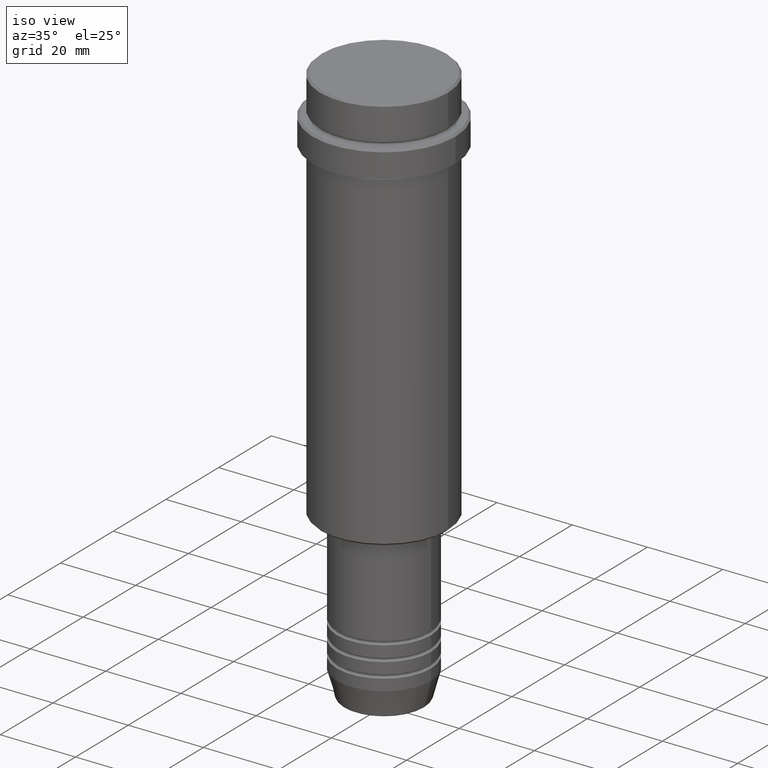
[diagram: clean part render]
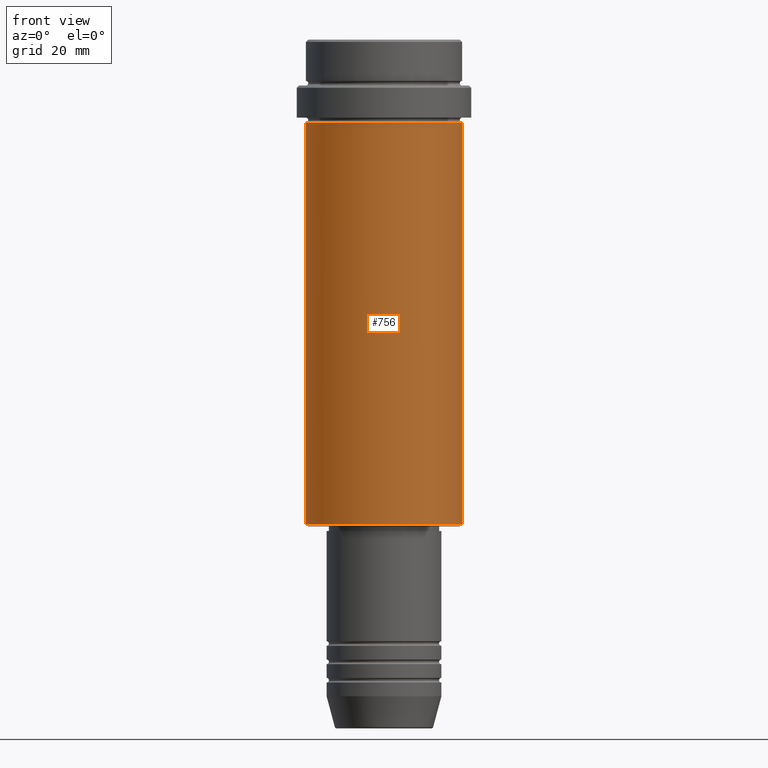
[diagram: tour spotlight — one face highlighted and labeled with its STEP entity id]
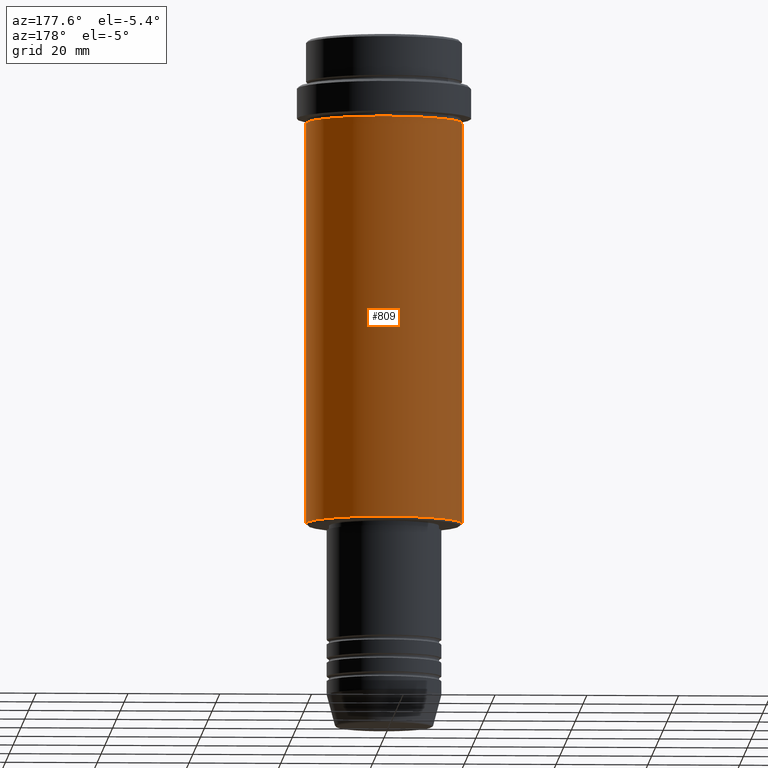
[diagram: tour spotlight — one face highlighted and labeled with its STEP entity id]
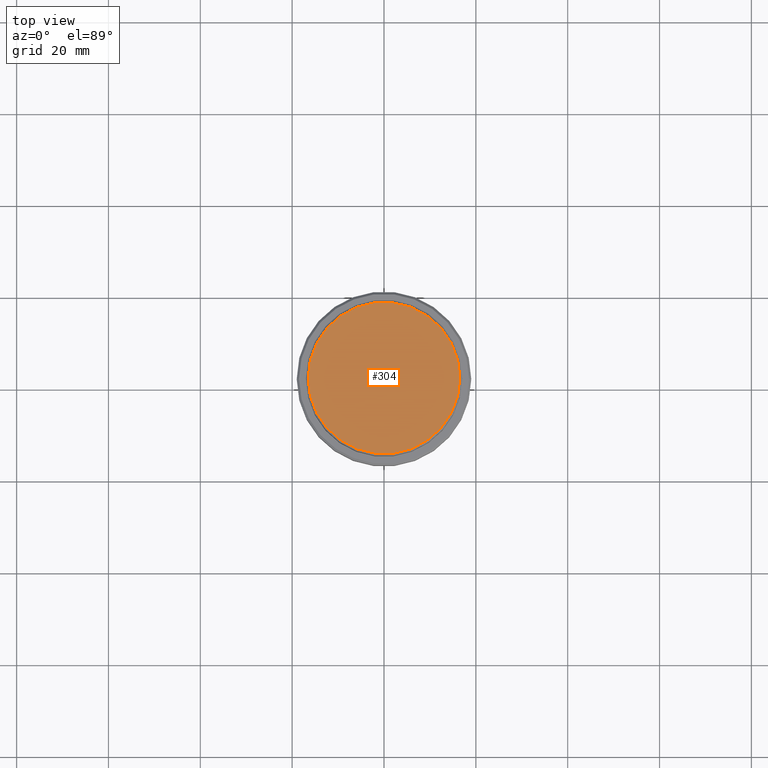
[diagram: tour spotlight — one face highlighted and labeled with its STEP entity id]
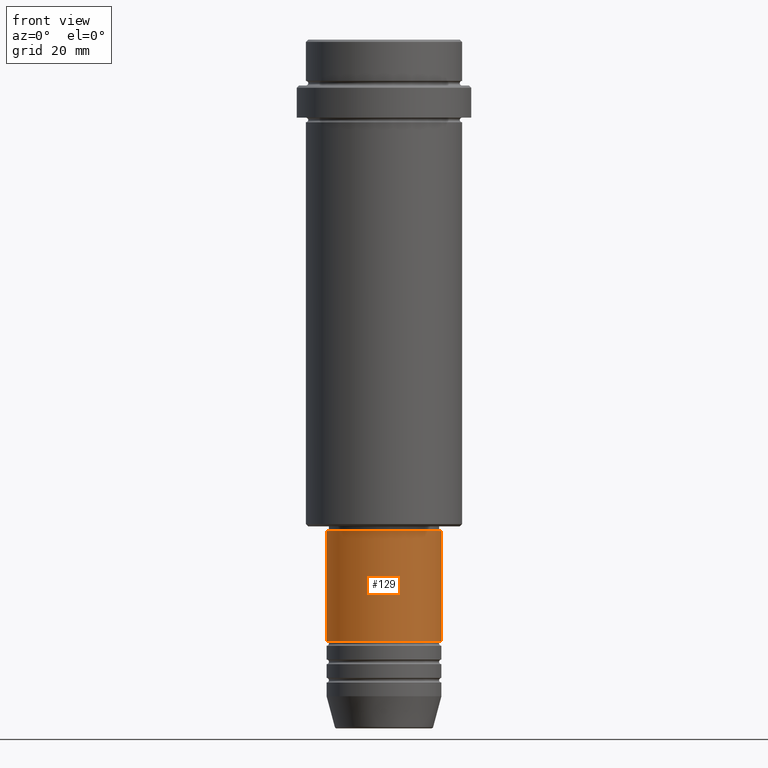
[diagram: tour spotlight — one face highlighted and labeled with its STEP entity id]
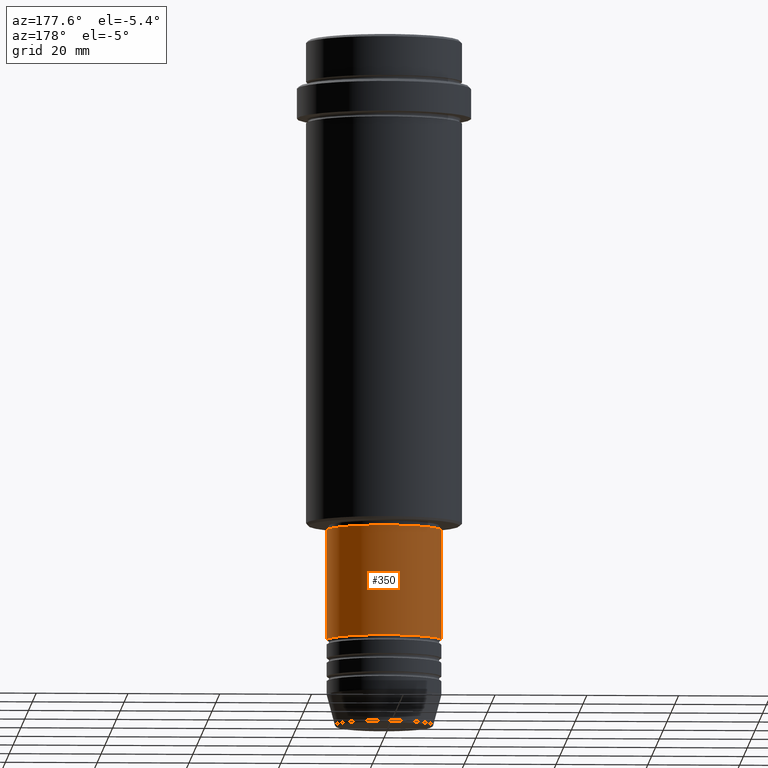
[diagram: tour spotlight — one face highlighted and labeled with its STEP entity id]
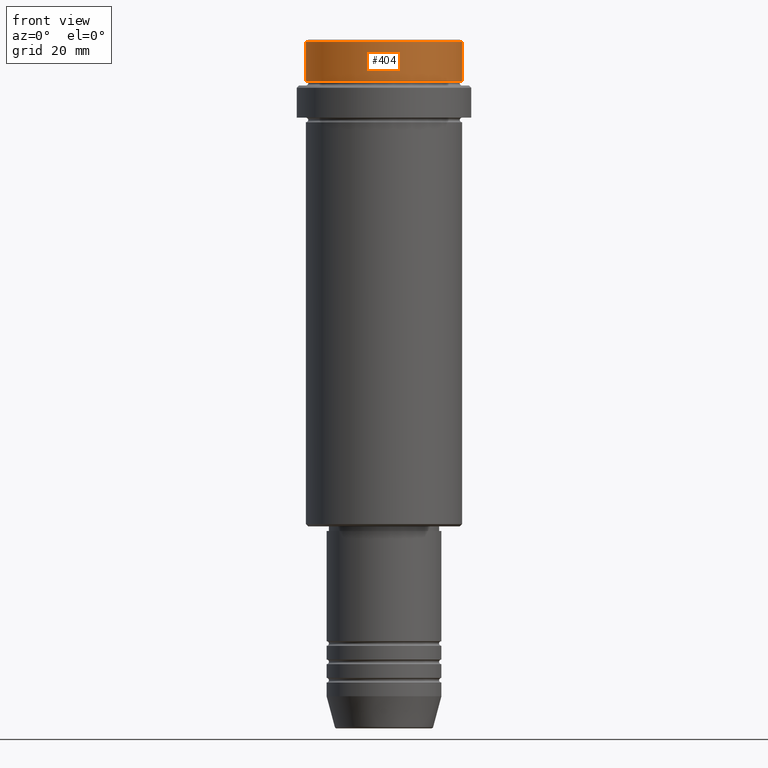
[diagram: tour spotlight — one face highlighted and labeled with its STEP entity id]
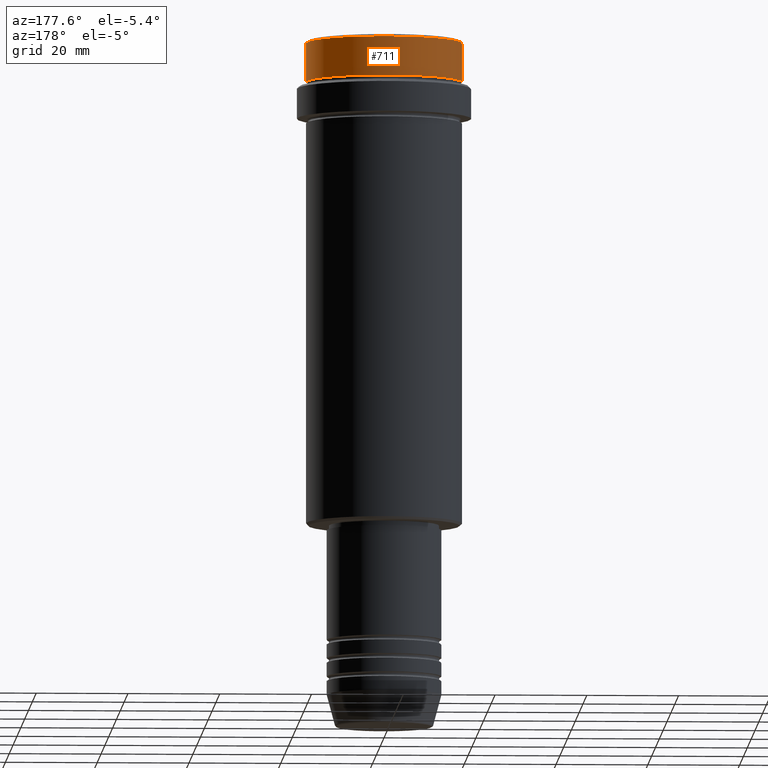
[diagram: tour spotlight — one face highlighted and labeled with its STEP entity id]
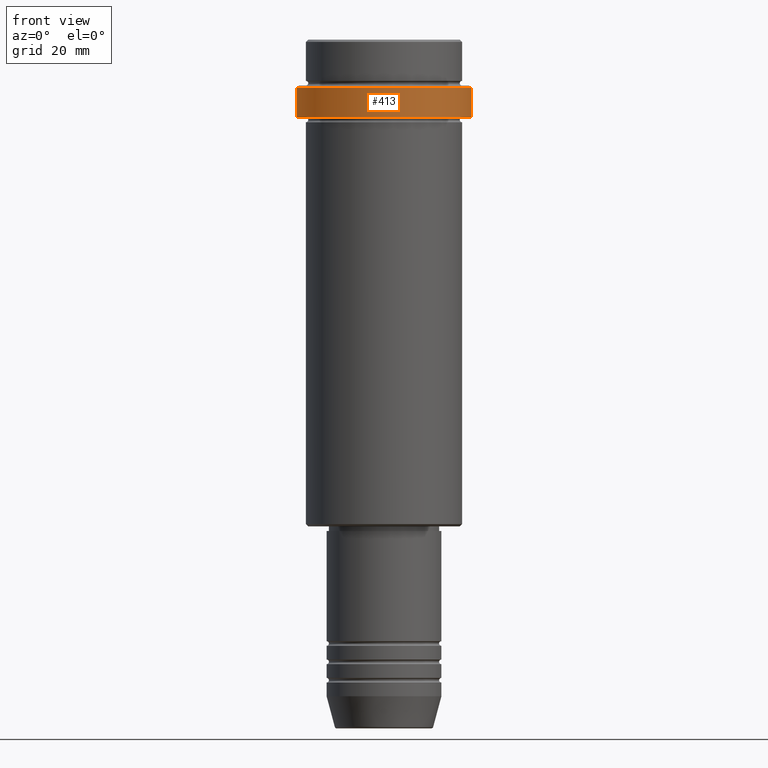
[diagram: tour spotlight — one face highlighted and labeled with its STEP entity id]
A machine part: a face-by-face anatomy tour. The part has 52 B-rep faces; the first image is the clean iso view, then the 8 largest visible faces are spotlighted one at a time (largest first), each with its STEP entity span.

Face 1 — front view, entity #756. In plain terms, the highlighted cylindrical surface (partial cylindrical patch) has radius 17 mm, axis along (-0, -0, 1).
Definition (entity closure, byte-faithful):
#33 = VECTOR ( 'NONE', #115, 1000.000000000000000 ) ;
#55 = FACE_OUTER_BOUND ( 'NONE', #183, .T. ) ;
#62 = DIRECTION ( 'NONE',  ( -0.000000000000000000, -0.000000000000000000, 1.000000000000000000 ) ) ;
#105 = EDGE_CURVE ( 'NONE', #568, #297, #928, .T. ) ;
#115 = DIRECTION ( 'NONE',  ( -0.000000000000000000, -0.000000000000000000, 1.000000000000000000 ) ) ;
#155 = CARTESIAN_POINT ( 'NONE',  ( 0.000000000000000000, 0.000000000000000000, 0.000000000000000000 ) ) ;
#183 = EDGE_LOOP ( 'NONE', ( #340, #396, #306, #264 ) ) ;
#217 = VERTEX_POINT ( 'NONE', #368 ) ;
#242 = VERTEX_POINT ( 'NONE', #1231 ) ;
#263 = DIRECTION ( 'NONE',  ( -0.000000000000000000, -0.000000000000000000, 1.000000000000000000 ) ) ;
#264 = ORIENTED_EDGE ( 'NONE', *, *, #878, .F. ) ;
#297 = VERTEX_POINT ( 'NONE', #328 ) ;
#306 = ORIENTED_EDGE ( 'NONE', *, *, #105, .T. ) ;
#328 = CARTESIAN_POINT ( 'NONE',  ( 16.99999999999998579, 0.000000000000000000, -18.00000000000000711 ) ) ;
#340 = ORIENTED_EDGE ( 'NONE', *, *, #624, .F. ) ;
#356 = CARTESIAN_POINT ( 'NONE',  ( 0.000000000000000000, 0.000000000000000000, -105.4999999999999858 ) ) ;
#368 = CARTESIAN_POINT ( 'NONE',  ( -16.99999999999999289, 2.081899558550499885E-15, -105.4999999999999858 ) ) ;
#396 = ORIENTED_EDGE ( 'NONE', *, *, #802, .T. ) ;
#484 = CYLINDRICAL_SURFACE ( 'NONE', #1260, 16.99999999999999289 ) ;
#568 = VERTEX_POINT ( 'NONE', #772 ) ;
#624 = EDGE_CURVE ( 'NONE', #217, #242, #987, .T. ) ;
#692 = DIRECTION ( 'NONE',  ( -0.000000000000000000, -0.000000000000000000, 1.000000000000000000 ) ) ;
#756 = ADVANCED_FACE ( 'NONE', ( #55 ), #484, .T. ) ;
#772 = CARTESIAN_POINT ( 'NONE',  ( 16.99999999999999289, 0.000000000000000000, -105.4999999999999858 ) ) ;
#783 = DIRECTION ( 'NONE',  ( -1.000000000000000000, 0.000000000000000000, 0.000000000000000000 ) ) ;
#802 = EDGE_CURVE ( 'NONE', #217, #568, #1335, .T. ) ;
#805 = DIRECTION ( 'NONE',  ( -0.000000000000000000, -0.000000000000000000, 1.000000000000000000 ) ) ;
#878 = EDGE_CURVE ( 'NONE', #242, #297, #1378, .T. ) ;
#891 = AXIS2_PLACEMENT_3D ( 'NONE', #1239, #692, #1123 ) ;
#928 = LINE ( 'NONE', #1235, #1305 ) ;
#987 = LINE ( 'NONE', #1097, #33 ) ;
#1097 = CARTESIAN_POINT ( 'NONE',  ( -16.99999999999999289, 2.081899558550499885E-15, 0.000000000000000000 ) ) ;
#1117 = DIRECTION ( 'NONE',  ( 1.000000000000000000, 0.000000000000000000, 0.000000000000000000 ) ) ;
#1123 = DIRECTION ( 'NONE',  ( 1.000000000000000000, 0.000000000000000000, 0.000000000000000000 ) ) ;
#1231 = CARTESIAN_POINT ( 'NONE',  ( -16.99999999999998579, 2.081899558550499491E-15, -18.00000000000000711 ) ) ;
#1235 = CARTESIAN_POINT ( 'NONE',  ( 16.99999999999999289, 0.000000000000000000, 0.000000000000000000 ) ) ;
#1239 = CARTESIAN_POINT ( 'NONE',  ( 0.000000000000000000, 0.000000000000000000, -18.00000000000000711 ) ) ;
#1260 = AXIS2_PLACEMENT_3D ( 'NONE', #155, #263, #1117 ) ;
#1305 = VECTOR ( 'NONE', #62, 1000.000000000000000 ) ;
#1335 = CIRCLE ( 'NONE', #1398, 16.99999999999999289 ) ;
#1378 = CIRCLE ( 'NONE', #891, 16.99999999999998579 ) ;
#1398 = AXIS2_PLACEMENT_3D ( 'NONE', #356, #805, #783 ) ;

Face 2 — auxiliary view, entity #809. In plain terms, the highlighted cylindrical surface (partial cylindrical patch) has radius 17 mm, axis along (-0, -0, 1).
Definition (entity closure, byte-faithful):
#3 = DIRECTION ( 'NONE',  ( -0.000000000000000000, -0.000000000000000000, 1.000000000000000000 ) ) ;
#33 = VECTOR ( 'NONE', #115, 1000.000000000000000 ) ;
#49 = DIRECTION ( 'NONE',  ( 1.000000000000000000, 0.000000000000000000, 0.000000000000000000 ) ) ;
#62 = DIRECTION ( 'NONE',  ( -0.000000000000000000, -0.000000000000000000, 1.000000000000000000 ) ) ;
#93 = ORIENTED_EDGE ( 'NONE', *, *, #124, .F. ) ;
#105 = EDGE_CURVE ( 'NONE', #568, #297, #928, .T. ) ;
#115 = DIRECTION ( 'NONE',  ( -0.000000000000000000, -0.000000000000000000, 1.000000000000000000 ) ) ;
#124 = EDGE_CURVE ( 'NONE', #297, #242, #1155, .T. ) ;
#190 = EDGE_LOOP ( 'NONE', ( #364, #933, #93, #1244 ) ) ;
#217 = VERTEX_POINT ( 'NONE', #368 ) ;
#242 = VERTEX_POINT ( 'NONE', #1231 ) ;
#270 = CARTESIAN_POINT ( 'NONE',  ( 0.000000000000000000, 0.000000000000000000, 0.000000000000000000 ) ) ;
#297 = VERTEX_POINT ( 'NONE', #328 ) ;
#328 = CARTESIAN_POINT ( 'NONE',  ( 16.99999999999998579, 0.000000000000000000, -18.00000000000000711 ) ) ;
#364 = ORIENTED_EDGE ( 'NONE', *, *, #598, .T. ) ;
#368 = CARTESIAN_POINT ( 'NONE',  ( -16.99999999999999289, 2.081899558550499885E-15, -105.4999999999999858 ) ) ;
#531 = DIRECTION ( 'NONE',  ( -1.000000000000000000, 0.000000000000000000, 0.000000000000000000 ) ) ;
#568 = VERTEX_POINT ( 'NONE', #772 ) ;
#572 = AXIS2_PLACEMENT_3D ( 'NONE', #1074, #3, #531 ) ;
#586 = CYLINDRICAL_SURFACE ( 'NONE', #1345, 16.99999999999999289 ) ;
#598 = EDGE_CURVE ( 'NONE', #568, #217, #1402, .T. ) ;
#624 = EDGE_CURVE ( 'NONE', #217, #242, #987, .T. ) ;
#675 = FACE_OUTER_BOUND ( 'NONE', #190, .T. ) ;
#696 = DIRECTION ( 'NONE',  ( -0.000000000000000000, -0.000000000000000000, 1.000000000000000000 ) ) ;
#772 = CARTESIAN_POINT ( 'NONE',  ( 16.99999999999999289, 0.000000000000000000, -105.4999999999999858 ) ) ;
#809 = ADVANCED_FACE ( 'NONE', ( #675 ), #586, .T. ) ;
#928 = LINE ( 'NONE', #1235, #1305 ) ;
#933 = ORIENTED_EDGE ( 'NONE', *, *, #624, .T. ) ;
#987 = LINE ( 'NONE', #1097, #33 ) ;
#1074 = CARTESIAN_POINT ( 'NONE',  ( 0.000000000000000000, 0.000000000000000000, -105.4999999999999858 ) ) ;
#1088 = AXIS2_PLACEMENT_3D ( 'NONE', #1372, #1146, #49 ) ;
#1097 = CARTESIAN_POINT ( 'NONE',  ( -16.99999999999999289, 2.081899558550499885E-15, 0.000000000000000000 ) ) ;
#1146 = DIRECTION ( 'NONE',  ( -0.000000000000000000, -0.000000000000000000, 1.000000000000000000 ) ) ;
#1155 = CIRCLE ( 'NONE', #1088, 16.99999999999998579 ) ;
#1231 = CARTESIAN_POINT ( 'NONE',  ( -16.99999999999998579, 2.081899558550499491E-15, -18.00000000000000711 ) ) ;
#1235 = CARTESIAN_POINT ( 'NONE',  ( 16.99999999999999289, 0.000000000000000000, 0.000000000000000000 ) ) ;
#1244 = ORIENTED_EDGE ( 'NONE', *, *, #105, .F. ) ;
#1305 = VECTOR ( 'NONE', #62, 1000.000000000000000 ) ;
#1345 = AXIS2_PLACEMENT_3D ( 'NONE', #270, #696, #1366 ) ;
#1366 = DIRECTION ( 'NONE',  ( 1.000000000000000000, 0.000000000000000000, 0.000000000000000000 ) ) ;
#1372 = CARTESIAN_POINT ( 'NONE',  ( 0.000000000000000000, 0.000000000000000000, -18.00000000000000711 ) ) ;
#1402 = CIRCLE ( 'NONE', #572, 16.99999999999999289 ) ;

Face 3 — top view, entity #304. In plain terms, the highlighted planar face has unit normal (0, -0, 1).
Definition (entity closure, byte-faithful):
#34 = DIRECTION ( 'NONE',  ( -0.000000000000000000, -0.000000000000000000, 1.000000000000000000 ) ) ;
#68 = EDGE_CURVE ( 'NONE', #441, #883, #1360, .T. ) ;
#104 = CARTESIAN_POINT ( 'NONE',  ( -16.49999999999995737, 0.000000000000000000, 0.000000000000000000 ) ) ;
#123 = DIRECTION ( 'NONE',  ( 1.000000000000000000, 0.000000000000000000, 0.000000000000000000 ) ) ;
#194 = ORIENTED_EDGE ( 'NONE', *, *, #361, .T. ) ;
#284 = DIRECTION ( 'NONE',  ( 1.000000000000000000, 0.000000000000000000, 0.000000000000000000 ) ) ;
#304 = ADVANCED_FACE ( 'NONE', ( #1414 ), #1192, .T. ) ;
#361 = EDGE_CURVE ( 'NONE', #883, #441, #960, .T. ) ;
#441 = VERTEX_POINT ( 'NONE', #104 ) ;
#453 = ORIENTED_EDGE ( 'NONE', *, *, #68, .T. ) ;
#504 = DIRECTION ( 'NONE',  ( -0.000000000000000000, -0.000000000000000000, 1.000000000000000000 ) ) ;
#512 = DIRECTION ( 'NONE',  ( 1.000000000000000000, 0.000000000000000000, 0.000000000000000000 ) ) ;
#523 = AXIS2_PLACEMENT_3D ( 'NONE', #997, #34, #284 ) ;
#869 = AXIS2_PLACEMENT_3D ( 'NONE', #991, #1089, #123 ) ;
#883 = VERTEX_POINT ( 'NONE', #925 ) ;
#925 = CARTESIAN_POINT ( 'NONE',  ( 16.49999999999995737, 2.051283388571813732E-15, 0.000000000000000000 ) ) ;
#960 = CIRCLE ( 'NONE', #980, 16.49999999999995737 ) ;
#980 = AXIS2_PLACEMENT_3D ( 'NONE', #1291, #504, #512 ) ;
#991 = CARTESIAN_POINT ( 'NONE',  ( 0.000000000000000000, 0.000000000000000000, 0.000000000000000000 ) ) ;
#997 = CARTESIAN_POINT ( 'NONE',  ( 0.000000000000000000, 0.000000000000000000, 0.000000000000000000 ) ) ;
#1089 = DIRECTION ( 'NONE',  ( 0.000000000000000000, -0.000000000000000000, 1.000000000000000000 ) ) ;
#1192 = PLANE ( 'NONE',  #869 ) ;
#1291 = CARTESIAN_POINT ( 'NONE',  ( 0.000000000000000000, 0.000000000000000000, 0.000000000000000000 ) ) ;
#1325 = EDGE_LOOP ( 'NONE', ( #453, #194 ) ) ;
#1360 = CIRCLE ( 'NONE', #523, 16.49999999999995737 ) ;
#1414 = FACE_OUTER_BOUND ( 'NONE', #1325, .T. ) ;

Face 4 — front view, entity #129. In plain terms, the highlighted cylindrical surface (partial cylindrical patch) has radius 12.5 mm, axis along (-0, -0, 1).
Definition (entity closure, byte-faithful):
#36 = CIRCLE ( 'NONE', #1280, 12.50000000000000000 ) ;
#75 = DIRECTION ( 'NONE',  ( -0.000000000000000000, -0.000000000000000000, 1.000000000000000000 ) ) ;
#129 = ADVANCED_FACE ( 'NONE', ( #606 ), #689, .T. ) ;
#207 = EDGE_CURVE ( 'NONE', #401, #628, #36, .T. ) ;
#252 = CARTESIAN_POINT ( 'NONE',  ( -12.50000000000000000, 1.530808498934191521E-15, -130.9999999999998863 ) ) ;
#288 = DIRECTION ( 'NONE',  ( 1.000000000000000000, 0.000000000000000000, 0.000000000000000000 ) ) ;
#307 = LINE ( 'NONE', #1349, #478 ) ;
#344 = CARTESIAN_POINT ( 'NONE',  ( 12.50000000000000000, 0.000000000000000000, -130.9999999999998863 ) ) ;
#387 = CARTESIAN_POINT ( 'NONE',  ( 0.000000000000000000, 0.000000000000000000, -130.9999999999998863 ) ) ;
#397 = LINE ( 'NONE', #945, #779 ) ;
#401 = VERTEX_POINT ( 'NONE', #1033 ) ;
#455 = DIRECTION ( 'NONE',  ( -0.000000000000000000, -0.000000000000000000, 1.000000000000000000 ) ) ;
#478 = VECTOR ( 'NONE', #657, 1000.000000000000000 ) ;
#483 = VERTEX_POINT ( 'NONE', #344 ) ;
#488 = ORIENTED_EDGE ( 'NONE', *, *, #914, .T. ) ;
#517 = ORIENTED_EDGE ( 'NONE', *, *, #1290, .F. ) ;
#565 = CARTESIAN_POINT ( 'NONE',  ( 0.000000000000000000, 0.000000000000000000, -107.0000000000000000 ) ) ;
#583 = CARTESIAN_POINT ( 'NONE',  ( 0.000000000000000000, 0.000000000000000000, 0.000000000000000000 ) ) ;
#606 = FACE_OUTER_BOUND ( 'NONE', #877, .T. ) ;
#627 = ORIENTED_EDGE ( 'NONE', *, *, #888, .T. ) ;
#628 = VERTEX_POINT ( 'NONE', #876 ) ;
#634 = AXIS2_PLACEMENT_3D ( 'NONE', #387, #75, #288 ) ;
#657 = DIRECTION ( 'NONE',  ( -0.000000000000000000, -0.000000000000000000, 1.000000000000000000 ) ) ;
#689 = CYLINDRICAL_SURFACE ( 'NONE', #1257, 12.50000000000000000 ) ;
#712 = DIRECTION ( 'NONE',  ( 1.000000000000000000, 0.000000000000000000, 0.000000000000000000 ) ) ;
#779 = VECTOR ( 'NONE', #830, 1000.000000000000000 ) ;
#791 = VERTEX_POINT ( 'NONE', #252 ) ;
#830 = DIRECTION ( 'NONE',  ( -0.000000000000000000, -0.000000000000000000, 1.000000000000000000 ) ) ;
#876 = CARTESIAN_POINT ( 'NONE',  ( 12.50000000000000000, 0.000000000000000000, -107.0000000000000000 ) ) ;
#877 = EDGE_LOOP ( 'NONE', ( #517, #627, #488, #1306 ) ) ;
#888 = EDGE_CURVE ( 'NONE', #791, #483, #1056, .T. ) ;
#914 = EDGE_CURVE ( 'NONE', #483, #628, #397, .T. ) ;
#945 = CARTESIAN_POINT ( 'NONE',  ( 12.50000000000000000, 0.000000000000000000, 0.000000000000000000 ) ) ;
#995 = DIRECTION ( 'NONE',  ( 1.000000000000000000, 0.000000000000000000, 0.000000000000000000 ) ) ;
#1021 = DIRECTION ( 'NONE',  ( -0.000000000000000000, -0.000000000000000000, 1.000000000000000000 ) ) ;
#1033 = CARTESIAN_POINT ( 'NONE',  ( -12.50000000000000000, 1.530808498934191521E-15, -107.0000000000000000 ) ) ;
#1056 = CIRCLE ( 'NONE', #634, 12.50000000000000000 ) ;
#1257 = AXIS2_PLACEMENT_3D ( 'NONE', #583, #1021, #712 ) ;
#1280 = AXIS2_PLACEMENT_3D ( 'NONE', #565, #455, #995 ) ;
#1290 = EDGE_CURVE ( 'NONE', #791, #401, #307, .T. ) ;
#1306 = ORIENTED_EDGE ( 'NONE', *, *, #207, .F. ) ;
#1349 = CARTESIAN_POINT ( 'NONE',  ( -12.50000000000000000, 1.530808498934191521E-15, 0.000000000000000000 ) ) ;

Face 5 — auxiliary view, entity #350. In plain terms, the highlighted cylindrical surface (partial cylindrical patch) has radius 12.5 mm, axis along (-0, -0, 1).
Definition (entity closure, byte-faithful):
#142 = AXIS2_PLACEMENT_3D ( 'NONE', #858, #970, #1310 ) ;
#211 = CIRCLE ( 'NONE', #142, 12.50000000000000000 ) ;
#252 = CARTESIAN_POINT ( 'NONE',  ( -12.50000000000000000, 1.530808498934191521E-15, -130.9999999999998863 ) ) ;
#307 = LINE ( 'NONE', #1349, #478 ) ;
#344 = CARTESIAN_POINT ( 'NONE',  ( 12.50000000000000000, 0.000000000000000000, -130.9999999999998863 ) ) ;
#350 = ADVANCED_FACE ( 'NONE', ( #874 ), #962, .T. ) ;
#397 = LINE ( 'NONE', #945, #779 ) ;
#401 = VERTEX_POINT ( 'NONE', #1033 ) ;
#478 = VECTOR ( 'NONE', #657, 1000.000000000000000 ) ;
#481 = AXIS2_PLACEMENT_3D ( 'NONE', #1347, #1332, #1213 ) ;
#483 = VERTEX_POINT ( 'NONE', #344 ) ;
#506 = EDGE_CURVE ( 'NONE', #628, #401, #939, .T. ) ;
#594 = ORIENTED_EDGE ( 'NONE', *, *, #643, .T. ) ;
#623 = ORIENTED_EDGE ( 'NONE', *, *, #1290, .T. ) ;
#628 = VERTEX_POINT ( 'NONE', #876 ) ;
#643 = EDGE_CURVE ( 'NONE', #483, #791, #211, .T. ) ;
#657 = DIRECTION ( 'NONE',  ( -0.000000000000000000, -0.000000000000000000, 1.000000000000000000 ) ) ;
#779 = VECTOR ( 'NONE', #830, 1000.000000000000000 ) ;
#791 = VERTEX_POINT ( 'NONE', #252 ) ;
#810 = EDGE_LOOP ( 'NONE', ( #594, #623, #1126, #1082 ) ) ;
#820 = AXIS2_PLACEMENT_3D ( 'NONE', #857, #1298, #917 ) ;
#830 = DIRECTION ( 'NONE',  ( -0.000000000000000000, -0.000000000000000000, 1.000000000000000000 ) ) ;
#857 = CARTESIAN_POINT ( 'NONE',  ( 0.000000000000000000, 0.000000000000000000, 0.000000000000000000 ) ) ;
#858 = CARTESIAN_POINT ( 'NONE',  ( 0.000000000000000000, 0.000000000000000000, -130.9999999999998863 ) ) ;
#874 = FACE_OUTER_BOUND ( 'NONE', #810, .T. ) ;
#876 = CARTESIAN_POINT ( 'NONE',  ( 12.50000000000000000, 0.000000000000000000, -107.0000000000000000 ) ) ;
#914 = EDGE_CURVE ( 'NONE', #483, #628, #397, .T. ) ;
#917 = DIRECTION ( 'NONE',  ( 1.000000000000000000, 0.000000000000000000, 0.000000000000000000 ) ) ;
#939 = CIRCLE ( 'NONE', #481, 12.50000000000000000 ) ;
#945 = CARTESIAN_POINT ( 'NONE',  ( 12.50000000000000000, 0.000000000000000000, 0.000000000000000000 ) ) ;
#962 = CYLINDRICAL_SURFACE ( 'NONE', #820, 12.50000000000000000 ) ;
#970 = DIRECTION ( 'NONE',  ( -0.000000000000000000, -0.000000000000000000, 1.000000000000000000 ) ) ;
#1033 = CARTESIAN_POINT ( 'NONE',  ( -12.50000000000000000, 1.530808498934191521E-15, -107.0000000000000000 ) ) ;
#1082 = ORIENTED_EDGE ( 'NONE', *, *, #914, .F. ) ;
#1126 = ORIENTED_EDGE ( 'NONE', *, *, #506, .F. ) ;
#1213 = DIRECTION ( 'NONE',  ( 1.000000000000000000, 0.000000000000000000, 0.000000000000000000 ) ) ;
#1290 = EDGE_CURVE ( 'NONE', #791, #401, #307, .T. ) ;
#1298 = DIRECTION ( 'NONE',  ( -0.000000000000000000, -0.000000000000000000, 1.000000000000000000 ) ) ;
#1310 = DIRECTION ( 'NONE',  ( 1.000000000000000000, 0.000000000000000000, 0.000000000000000000 ) ) ;
#1332 = DIRECTION ( 'NONE',  ( -0.000000000000000000, -0.000000000000000000, 1.000000000000000000 ) ) ;
#1347 = CARTESIAN_POINT ( 'NONE',  ( 0.000000000000000000, 0.000000000000000000, -107.0000000000000000 ) ) ;
#1349 = CARTESIAN_POINT ( 'NONE',  ( -12.50000000000000000, 1.530808498934191521E-15, 0.000000000000000000 ) ) ;

Face 6 — front view, entity #404. In plain terms, the highlighted cylindrical surface (partial cylindrical patch) has radius 17 mm, axis along (-0, -0, 1).
Definition (entity closure, byte-faithful):
#10 = DIRECTION ( 'NONE',  ( -0.000000000000000000, -0.000000000000000000, 1.000000000000000000 ) ) ;
#51 = VERTEX_POINT ( 'NONE', #644 ) ;
#128 = CARTESIAN_POINT ( 'NONE',  ( 16.99999999999999289, 0.000000000000000000, 0.000000000000000000 ) ) ;
#150 = ORIENTED_EDGE ( 'NONE', *, *, #1098, .T. ) ;
#153 = VERTEX_POINT ( 'NONE', #898 ) ;
#189 = AXIS2_PLACEMENT_3D ( 'NONE', #292, #1148, #612 ) ;
#229 = AXIS2_PLACEMENT_3D ( 'NONE', #536, #571, #423 ) ;
#292 = CARTESIAN_POINT ( 'NONE',  ( 0.000000000000000000, 0.000000000000000000, 0.000000000000000000 ) ) ;
#338 = EDGE_CURVE ( 'NONE', #51, #607, #530, .T. ) ;
#339 = ORIENTED_EDGE ( 'NONE', *, *, #653, .T. ) ;
#341 = LINE ( 'NONE', #128, #521 ) ;
#375 = EDGE_CURVE ( 'NONE', #559, #607, #389, .T. ) ;
#389 = CIRCLE ( 'NONE', #620, 16.99999999999999289 ) ;
#394 = FACE_OUTER_BOUND ( 'NONE', #538, .T. ) ;
#404 = ADVANCED_FACE ( 'NONE', ( #394 ), #827, .T. ) ;
#423 = DIRECTION ( 'NONE',  ( 1.000000000000000000, 0.000000000000000000, 0.000000000000000000 ) ) ;
#521 = VECTOR ( 'NONE', #979, 1000.000000000000000 ) ;
#530 = LINE ( 'NONE', #745, #1156 ) ;
#536 = CARTESIAN_POINT ( 'NONE',  ( 0.000000000000000000, 0.000000000000000000, -8.999999999999998224 ) ) ;
#538 = EDGE_LOOP ( 'NONE', ( #1312, #150, #339, #851 ) ) ;
#559 = VERTEX_POINT ( 'NONE', #765 ) ;
#571 = DIRECTION ( 'NONE',  ( -0.000000000000000000, -0.000000000000000000, 1.000000000000000000 ) ) ;
#601 = CARTESIAN_POINT ( 'NONE',  ( 0.000000000000000000, 0.000000000000000000, -0.5000000000000593969 ) ) ;
#607 = VERTEX_POINT ( 'NONE', #1186 ) ;
#612 = DIRECTION ( 'NONE',  ( 1.000000000000000000, 0.000000000000000000, 0.000000000000000000 ) ) ;
#620 = AXIS2_PLACEMENT_3D ( 'NONE', #601, #706, #838 ) ;
#644 = CARTESIAN_POINT ( 'NONE',  ( -16.99999999999998579, 2.081899558550499491E-15, -8.999999999999998224 ) ) ;
#653 = EDGE_CURVE ( 'NONE', #153, #559, #341, .T. ) ;
#683 = CIRCLE ( 'NONE', #229, 16.99999999999998579 ) ;
#706 = DIRECTION ( 'NONE',  ( 0.000000000000000000, 0.000000000000000000, -1.000000000000000000 ) ) ;
#745 = CARTESIAN_POINT ( 'NONE',  ( -16.99999999999999289, 2.081899558550499885E-15, 0.000000000000000000 ) ) ;
#765 = CARTESIAN_POINT ( 'NONE',  ( 16.99999999999999289, 0.000000000000000000, -0.5000000000000593969 ) ) ;
#827 = CYLINDRICAL_SURFACE ( 'NONE', #189, 16.99999999999999289 ) ;
#838 = DIRECTION ( 'NONE',  ( 1.000000000000000000, 0.000000000000000000, 0.000000000000000000 ) ) ;
#851 = ORIENTED_EDGE ( 'NONE', *, *, #375, .T. ) ;
#898 = CARTESIAN_POINT ( 'NONE',  ( 16.99999999999998579, 0.000000000000000000, -8.999999999999998224 ) ) ;
#979 = DIRECTION ( 'NONE',  ( -0.000000000000000000, -0.000000000000000000, 1.000000000000000000 ) ) ;
#1098 = EDGE_CURVE ( 'NONE', #51, #153, #683, .T. ) ;
#1148 = DIRECTION ( 'NONE',  ( -0.000000000000000000, -0.000000000000000000, 1.000000000000000000 ) ) ;
#1156 = VECTOR ( 'NONE', #10, 1000.000000000000000 ) ;
#1186 = CARTESIAN_POINT ( 'NONE',  ( -16.99999999999999289, 2.081899558550499885E-15, -0.5000000000000593969 ) ) ;
#1312 = ORIENTED_EDGE ( 'NONE', *, *, #338, .F. ) ;

Face 7 — auxiliary view, entity #711. In plain terms, the highlighted cylindrical surface (partial cylindrical patch) has radius 17 mm, axis along (-0, -0, 1).
Definition (entity closure, byte-faithful):
#10 = DIRECTION ( 'NONE',  ( -0.000000000000000000, -0.000000000000000000, 1.000000000000000000 ) ) ;
#13 = EDGE_CURVE ( 'NONE', #153, #51, #1057, .T. ) ;
#35 = AXIS2_PLACEMENT_3D ( 'NONE', #742, #833, #625 ) ;
#40 = CARTESIAN_POINT ( 'NONE',  ( 0.000000000000000000, 0.000000000000000000, -0.5000000000000593969 ) ) ;
#50 = DIRECTION ( 'NONE',  ( 0.000000000000000000, 0.000000000000000000, -1.000000000000000000 ) ) ;
#51 = VERTEX_POINT ( 'NONE', #644 ) ;
#128 = CARTESIAN_POINT ( 'NONE',  ( 16.99999999999999289, 0.000000000000000000, 0.000000000000000000 ) ) ;
#153 = VERTEX_POINT ( 'NONE', #898 ) ;
#212 = ORIENTED_EDGE ( 'NONE', *, *, #13, .T. ) ;
#235 = CIRCLE ( 'NONE', #588, 16.99999999999999289 ) ;
#287 = ORIENTED_EDGE ( 'NONE', *, *, #761, .T. ) ;
#312 = FACE_OUTER_BOUND ( 'NONE', #746, .T. ) ;
#338 = EDGE_CURVE ( 'NONE', #51, #607, #530, .T. ) ;
#341 = LINE ( 'NONE', #128, #521 ) ;
#367 = DIRECTION ( 'NONE',  ( 1.000000000000000000, 0.000000000000000000, 0.000000000000000000 ) ) ;
#521 = VECTOR ( 'NONE', #979, 1000.000000000000000 ) ;
#530 = LINE ( 'NONE', #745, #1156 ) ;
#535 = CYLINDRICAL_SURFACE ( 'NONE', #961, 16.99999999999999289 ) ;
#559 = VERTEX_POINT ( 'NONE', #765 ) ;
#588 = AXIS2_PLACEMENT_3D ( 'NONE', #40, #50, #367 ) ;
#607 = VERTEX_POINT ( 'NONE', #1186 ) ;
#625 = DIRECTION ( 'NONE',  ( 1.000000000000000000, 0.000000000000000000, 0.000000000000000000 ) ) ;
#644 = CARTESIAN_POINT ( 'NONE',  ( -16.99999999999998579, 2.081899558550499491E-15, -8.999999999999998224 ) ) ;
#646 = CARTESIAN_POINT ( 'NONE',  ( 0.000000000000000000, 0.000000000000000000, 0.000000000000000000 ) ) ;
#653 = EDGE_CURVE ( 'NONE', #153, #559, #341, .T. ) ;
#711 = ADVANCED_FACE ( 'NONE', ( #312 ), #535, .T. ) ;
#741 = DIRECTION ( 'NONE',  ( -0.000000000000000000, -0.000000000000000000, 1.000000000000000000 ) ) ;
#742 = CARTESIAN_POINT ( 'NONE',  ( 0.000000000000000000, 0.000000000000000000, -8.999999999999998224 ) ) ;
#745 = CARTESIAN_POINT ( 'NONE',  ( -16.99999999999999289, 2.081899558550499885E-15, 0.000000000000000000 ) ) ;
#746 = EDGE_LOOP ( 'NONE', ( #212, #1337, #287, #948 ) ) ;
#761 = EDGE_CURVE ( 'NONE', #607, #559, #235, .T. ) ;
#765 = CARTESIAN_POINT ( 'NONE',  ( 16.99999999999999289, 0.000000000000000000, -0.5000000000000593969 ) ) ;
#833 = DIRECTION ( 'NONE',  ( -0.000000000000000000, -0.000000000000000000, 1.000000000000000000 ) ) ;
#898 = CARTESIAN_POINT ( 'NONE',  ( 16.99999999999998579, 0.000000000000000000, -8.999999999999998224 ) ) ;
#948 = ORIENTED_EDGE ( 'NONE', *, *, #653, .F. ) ;
#961 = AXIS2_PLACEMENT_3D ( 'NONE', #646, #741, #1194 ) ;
#979 = DIRECTION ( 'NONE',  ( -0.000000000000000000, -0.000000000000000000, 1.000000000000000000 ) ) ;
#1057 = CIRCLE ( 'NONE', #35, 16.99999999999998579 ) ;
#1156 = VECTOR ( 'NONE', #10, 1000.000000000000000 ) ;
#1186 = CARTESIAN_POINT ( 'NONE',  ( -16.99999999999999289, 2.081899558550499885E-15, -0.5000000000000593969 ) ) ;
#1194 = DIRECTION ( 'NONE',  ( 1.000000000000000000, 0.000000000000000000, 0.000000000000000000 ) ) ;
#1337 = ORIENTED_EDGE ( 'NONE', *, *, #338, .T. ) ;

Face 8 — front view, entity #413. In plain terms, the highlighted cylindrical surface (partial cylindrical patch) has radius 19 mm, axis along (-0, -0, 1).
Definition (entity closure, byte-faithful):
#42 = VERTEX_POINT ( 'NONE', #631 ) ;
#61 = VERTEX_POINT ( 'NONE', #982 ) ;
#67 = LINE ( 'NONE', #494, #497 ) ;
#139 = CARTESIAN_POINT ( 'NONE',  ( 18.99999999999998579, 0.000000000000000000, -10.50000000000001243 ) ) ;
#174 = ORIENTED_EDGE ( 'NONE', *, *, #417, .T. ) ;
#180 = EDGE_CURVE ( 'NONE', #1083, #61, #477, .T. ) ;
#182 = LINE ( 'NONE', #940, #411 ) ;
#215 = CARTESIAN_POINT ( 'NONE',  ( 0.000000000000000000, 0.000000000000000000, -10.50000000000001243 ) ) ;
#258 = AXIS2_PLACEMENT_3D ( 'NONE', #1165, #630, #313 ) ;
#262 = ORIENTED_EDGE ( 'NONE', *, *, #403, .F. ) ;
#313 = DIRECTION ( 'NONE',  ( 1.000000000000000000, 0.000000000000000000, 0.000000000000000000 ) ) ;
#348 = AXIS2_PLACEMENT_3D ( 'NONE', #1322, #605, #1202 ) ;
#400 = FACE_OUTER_BOUND ( 'NONE', #677, .T. ) ;
#403 = EDGE_CURVE ( 'NONE', #42, #61, #182, .T. ) ;
#411 = VECTOR ( 'NONE', #720, 1000.000000000000000 ) ;
#413 = ADVANCED_FACE ( 'NONE', ( #400 ), #418, .T. ) ;
#417 = EDGE_CURVE ( 'NONE', #42, #1095, #1283, .T. ) ;
#418 = CYLINDRICAL_SURFACE ( 'NONE', #348, 18.99999999999998579 ) ;
#477 = CIRCLE ( 'NONE', #774, 18.99999999999998579 ) ;
#494 = CARTESIAN_POINT ( 'NONE',  ( 18.99999999999998579, 0.000000000000000000, 0.000000000000000000 ) ) ;
#497 = VECTOR ( 'NONE', #823, 1000.000000000000000 ) ;
#605 = DIRECTION ( 'NONE',  ( -0.000000000000000000, -0.000000000000000000, 1.000000000000000000 ) ) ;
#630 = DIRECTION ( 'NONE',  ( -0.000000000000000000, -0.000000000000000000, 1.000000000000000000 ) ) ;
#631 = CARTESIAN_POINT ( 'NONE',  ( -18.99999999999998579, 2.326828918379969393E-15, -17.00000000000000000 ) ) ;
#677 = EDGE_LOOP ( 'NONE', ( #262, #174, #1415, #1049 ) ) ;
#720 = DIRECTION ( 'NONE',  ( -0.000000000000000000, -0.000000000000000000, 1.000000000000000000 ) ) ;
#774 = AXIS2_PLACEMENT_3D ( 'NONE', #215, #1076, #1313 ) ;
#823 = DIRECTION ( 'NONE',  ( -0.000000000000000000, -0.000000000000000000, 1.000000000000000000 ) ) ;
#912 = EDGE_CURVE ( 'NONE', #1095, #1083, #67, .T. ) ;
#940 = CARTESIAN_POINT ( 'NONE',  ( -18.99999999999998579, 2.326828918379969393E-15, 0.000000000000000000 ) ) ;
#982 = CARTESIAN_POINT ( 'NONE',  ( -18.99999999999998579, 2.326828918379969393E-15, -10.50000000000001243 ) ) ;
#1049 = ORIENTED_EDGE ( 'NONE', *, *, #180, .T. ) ;
#1076 = DIRECTION ( 'NONE',  ( 0.000000000000000000, 0.000000000000000000, -1.000000000000000000 ) ) ;
#1083 = VERTEX_POINT ( 'NONE', #139 ) ;
#1095 = VERTEX_POINT ( 'NONE', #1196 ) ;
#1165 = CARTESIAN_POINT ( 'NONE',  ( 0.000000000000000000, 0.000000000000000000, -17.00000000000000000 ) ) ;
#1196 = CARTESIAN_POINT ( 'NONE',  ( 18.99999999999998579, 0.000000000000000000, -17.00000000000000000 ) ) ;
#1202 = DIRECTION ( 'NONE',  ( 1.000000000000000000, 0.000000000000000000, 0.000000000000000000 ) ) ;
#1283 = CIRCLE ( 'NONE', #258, 18.99999999999998579 ) ;
#1313 = DIRECTION ( 'NONE',  ( 1.000000000000000000, 0.000000000000000000, 0.000000000000000000 ) ) ;
#1322 = CARTESIAN_POINT ( 'NONE',  ( 0.000000000000000000, 0.000000000000000000, 0.000000000000000000 ) ) ;
#1415 = ORIENTED_EDGE ( 'NONE', *, *, #912, .T. ) ;